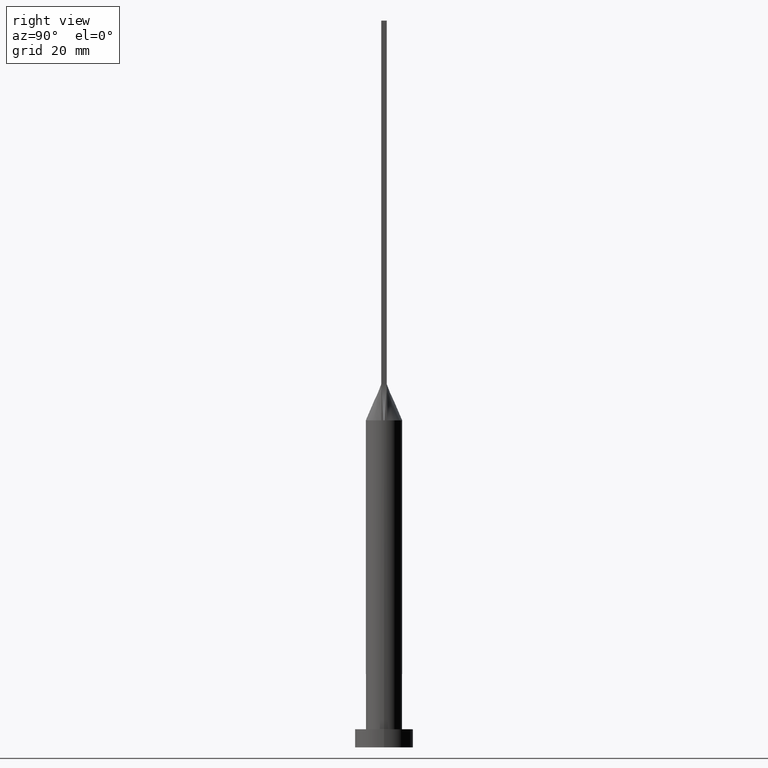
[diagram: clean part render]
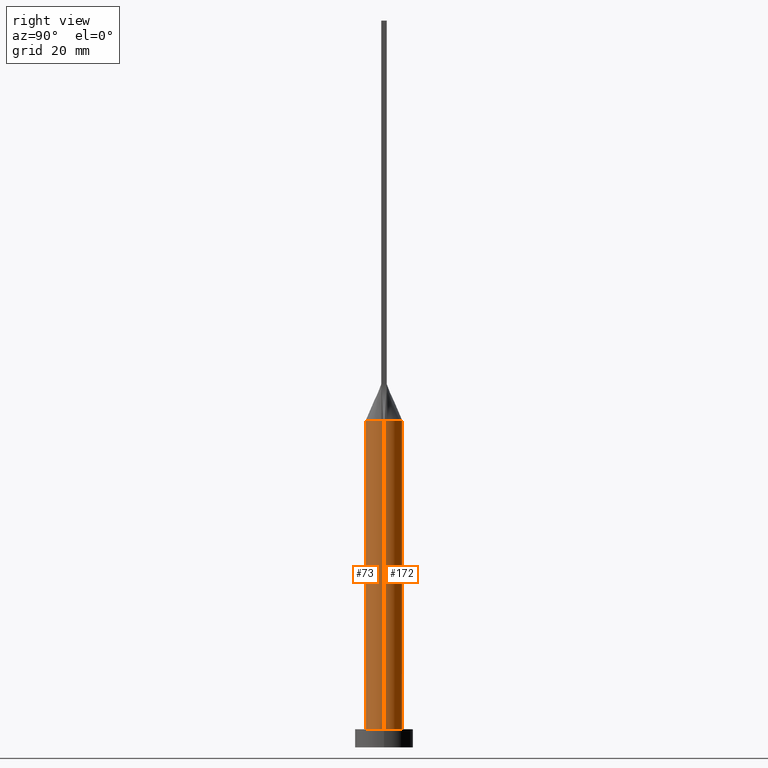
[diagram: same view with one multi-face feature highlighted, each face labeled with its STEP entity id]
A machine part, right view. The highlighted faces form ONE feature: a constant-radius fillet chain: 2 tangent blend faces with common blend radius 5 mm. The faces share edges in the B-rep.
Their STEP definitions:
[1] entity #172 (Cylinder):
#7 = EDGE_CURVE ( 'NONE', #398, #416, #492, .T. ) ;
#21 = CARTESIAN_POINT ( 'NONE',  ( 4.938814826645345768, 0.7798128673650538412, 90.00000000000001421 ) ) ;
#34 = CARTESIAN_POINT ( 'NONE',  ( 0.000000000000000000, 0.000000000000000000, 5.000000000000000000 ) ) ;
#39 = ORIENTED_EDGE ( 'NONE', *, *, #323, .F. ) ;
#40 = CARTESIAN_POINT ( 'NONE',  ( 4.938814826645345768, 0.7798128673650538412, 90.00000000000001421 ) ) ;
#42 = CARTESIAN_POINT ( 'NONE',  ( -4.332026455536841070, 2.547220758687717801, 90.00000000000001421 ) ) ;
#43 = CIRCLE ( 'NONE', #77, 5.000000000000000000 ) ;
#52 = CARTESIAN_POINT ( 'NONE',  ( -5.000000000000000000, 0.000000000000000000, 90.00000000000001421 ) ) ;
#64 = ORIENTED_EDGE ( 'NONE', *, *, #130, .F. ) ;
#70 = CARTESIAN_POINT ( 'NONE',  ( 4.999812818728077701, 1.241126956226958231E-15, 90.00000000000001421 ) ) ;
#77 = AXIS2_PLACEMENT_3D ( 'NONE', #260, #601, #85 ) ;
#78 = DIRECTION ( 'NONE',  ( 1.000000000000000000, 0.000000000000000000, 0.000000000000000000 ) ) ;
#80 = VERTEX_POINT ( 'NONE', #21 ) ;
#81 = DIRECTION ( 'NONE',  ( 0.000000000000000000, 0.000000000000000000, 1.000000000000000000 ) ) ;
#85 = DIRECTION ( 'NONE',  ( 1.000000000000000000, 0.000000000000000000, 0.000000000000000000 ) ) ;
#91 = CARTESIAN_POINT ( 'NONE',  ( 0.7119876437238013001, 4.961551549233180758, 90.00000000000002842 ) ) ;
#95 = CARTESIAN_POINT ( 'NONE',  ( 0.3560391241594590972, 5.000000000000001776, 90.00000000000002842 ) ) ;
#102 = CARTESIAN_POINT ( 'NONE',  ( -4.753727492665067444, 1.629988260829202007, 90.00000000000005684 ) ) ;
#115 = DIRECTION ( 'NONE',  ( -0.000000000000000000, -0.000000000000000000, -1.000000000000000000 ) ) ;
#123 = FACE_OUTER_BOUND ( 'NONE', #265, .T. ) ;
#130 = EDGE_CURVE ( 'NONE', #221, #362, #519, .T. ) ;
#137 = CARTESIAN_POINT ( 'NONE',  ( -0.3560391241594593192, 5.000000000000000000, 90.00000000000004263 ) ) ;
#146 = CARTESIAN_POINT ( 'NONE',  ( -2.643217737595827455, 4.256483892511438327, 90.00000000000000000 ) ) ;
#161 = ORIENTED_EDGE ( 'NONE', *, *, #7, .T. ) ;
#166 = AXIS2_PLACEMENT_3D ( 'NONE', #417, #494, #181 ) ;
#172 = ADVANCED_FACE ( 'NONE', ( #123 ), #552, .T. ) ;
#181 = DIRECTION ( 'NONE',  ( 1.000000000000000000, 0.000000000000000000, 0.000000000000000000 ) ) ;
#188 = CARTESIAN_POINT ( 'NONE',  ( 4.753727492665065668, 1.629988260829201563, 90.00000000000002842 ) ) ;
#192 = CARTESIAN_POINT ( 'NONE',  ( 2.643217737595826566, 4.256483892511437439, 90.00000000000001421 ) ) ;
#194 = CARTESIAN_POINT ( 'NONE',  ( -4.874625637456156291, 1.186344398896586716, 90.00000000000002842 ) ) ;
#202 = CARTESIAN_POINT ( 'NONE',  ( -4.999812818728077701, -1.193032336741890821E-15, 90.00000000000001421 ) ) ;
#211 = DIRECTION ( 'NONE',  ( -0.000000000000000000, -0.000000000000000000, -1.000000000000000000 ) ) ;
#214 = VECTOR ( 'NONE', #115, 1000.000000000000000 ) ;
#221 = VERTEX_POINT ( 'NONE', #240 ) ;
#235 = CARTESIAN_POINT ( 'NONE',  ( -4.938831943662458812, 0.7798155886440081286, 90.00000000000001421 ) ) ;
#237 = CARTESIAN_POINT ( 'NONE',  ( 4.874625637456157179, 1.186344398896585606, 90.00000000000001421 ) ) ;
#240 = CARTESIAN_POINT ( 'NONE',  ( -4.938831943662458812, 0.7798155886440081286, 90.00000000000001421 ) ) ;
#260 = CARTESIAN_POINT ( 'NONE',  ( 0.000000000000000000, 0.000000000000000000, 90.00000000000001421 ) ) ;
#265 = EDGE_LOOP ( 'NONE', ( #607, #161, #412, #574, #64, #39 ) ) ;
#271 = CARTESIAN_POINT ( 'NONE',  ( -5.000000000000000000, 0.000000000000000000, 5.000000000000000000 ) ) ;
#276 = CARTESIAN_POINT ( 'NONE',  ( -3.168723755431092748, 3.881165404529570484, 90.00000000000000000 ) ) ;
#282 = CARTESIAN_POINT ( 'NONE',  ( -0.7119876437238006339, 4.961551549233178982, 90.00000000000001421 ) ) ;
#311 = DIRECTION ( 'NONE',  ( -0.000000000000000000, -0.000000000000000000, -1.000000000000000000 ) ) ;
#321 = CARTESIAN_POINT ( 'NONE',  ( 3.404830936252119411, 3.673931880027066388, 90.00000000000001421 ) ) ;
#323 = EDGE_CURVE ( 'NONE', #80, #221, #423, .T. ) ;
#324 = CARTESIAN_POINT ( 'NONE',  ( 4.332026455536839293, 2.547220758687718689, 90.00000000000005684 ) ) ;
#326 = CARTESIAN_POINT ( 'NONE',  ( 1.732223102076450250, 4.702695359254404295, 90.00000000000000000 ) ) ;
#330 = CARTESIAN_POINT ( 'NONE',  ( -1.400150253878312823, 4.812847332616943419, 90.00000000000000000 ) ) ;
#331 = VERTEX_POINT ( 'NONE', #271 ) ;
#340 = VECTOR ( 'NONE', #211, 1000.000000000000000 ) ;
#342 = EDGE_CURVE ( 'NONE', #362, #331, #481, .T. ) ;
#362 = VERTEX_POINT ( 'NONE', #202 ) ;
#363 = CARTESIAN_POINT ( 'NONE',  ( 5.000000000000000000, 6.123233995736766282E-16, 5.000000000000000000 ) ) ;
#371 = CARTESIAN_POINT ( 'NONE',  ( -3.404830936252120299, 3.673931880027067720, 90.00000000000000000 ) ) ;
#380 = CARTESIAN_POINT ( 'NONE',  ( -1.732223102076449806, 4.702695359254402518, 89.99999999999997158 ) ) ;
#398 = VERTEX_POINT ( 'NONE', #70 ) ;
#405 = CARTESIAN_POINT ( 'NONE',  ( 0.000000000000000000, 0.000000000000000000, 90.00000000000001421 ) ) ;
#412 = ORIENTED_EDGE ( 'NONE', *, *, #456, .T. ) ;
#416 = VERTEX_POINT ( 'NONE', #363 ) ;
#417 = CARTESIAN_POINT ( 'NONE',  ( 0.000000000000000000, 0.000000000000000000, 90.00000000000001421 ) ) ;
#423 = B_SPLINE_CURVE_WITH_KNOTS ( 'NONE', 3,
 ( #40, #237, #188, #324, #514, #321, #621, #192, #562, #326, #573, #91, #95, #137, #282, #330, #380, #567, #146, #276, #371, #474, #42, #102, #194, #235 ),
 .UNSPECIFIED., .F., .F.,
 ( 4, 2, 2, 2, 2, 2, 2, 2, 2, 2, 2, 2, 4 ),
 ( 0.000000000000000000, 0.1250000000000001388, 0.2500000000000002220, 0.3125000000000002776, 0.3750000000000002776, 0.4375000000000002776, 0.5000000000000002220, 0.5625000000000002220, 0.6250000000000001110, 0.6875000000000001110, 0.7500000000000001110, 0.8750000000000001110, 1.000000000000000000 ),
 .UNSPECIFIED. ) ;
#435 = CARTESIAN_POINT ( 'NONE',  ( 5.000000000000000000, 6.123233995736766282E-16, 90.00000000000001421 ) ) ;
#452 = AXIS2_PLACEMENT_3D ( 'NONE', #34, #81, #78 ) ;
#456 = EDGE_CURVE ( 'NONE', #416, #331, #581, .T. ) ;
#461 = EDGE_CURVE ( 'NONE', #398, #80, #43, .T. ) ;
#474 = CARTESIAN_POINT ( 'NONE',  ( -4.029217956433124748, 3.021257902548482033, 90.00000000000001421 ) ) ;
#481 = LINE ( 'NONE', #52, #214 ) ;
#492 = LINE ( 'NONE', #435, #340 ) ;
#494 = DIRECTION ( 'NONE',  ( 0.000000000000000000, 0.000000000000000000, 1.000000000000000000 ) ) ;
#514 = CARTESIAN_POINT ( 'NONE',  ( 4.029217956433126524, 3.021257902548482477, 90.00000000000001421 ) ) ;
#519 = CIRCLE ( 'NONE', #166, 5.000000000000000000 ) ;
#548 = DIRECTION ( 'NONE',  ( -1.000000000000000000, 0.000000000000000000, 0.000000000000000000 ) ) ;
#552 = CYLINDRICAL_SURFACE ( 'NONE', #572, 5.000000000000000000 ) ;
#562 = CARTESIAN_POINT ( 'NONE',  ( 2.353781608410062454, 4.424438117685770777, 90.00000000000001421 ) ) ;
#567 = CARTESIAN_POINT ( 'NONE',  ( -2.353781608410062010, 4.424438117685770777, 89.99999999999997158 ) ) ;
#572 = AXIS2_PLACEMENT_3D ( 'NONE', #405, #311, #548 ) ;
#573 = CARTESIAN_POINT ( 'NONE',  ( 1.400150253878312823, 4.812847332616943419, 90.00000000000001421 ) ) ;
#574 = ORIENTED_EDGE ( 'NONE', *, *, #342, .F. ) ;
#581 = CIRCLE ( 'NONE', #452, 5.000000000000000000 ) ;
#601 = DIRECTION ( 'NONE',  ( 0.000000000000000000, 0.000000000000000000, 1.000000000000000000 ) ) ;
#607 = ORIENTED_EDGE ( 'NONE', *, *, #461, .F. ) ;
#621 = CARTESIAN_POINT ( 'NONE',  ( 3.168723755431093192, 3.881165404529570040, 89.99999999999998579 ) ) ;
[2] entity #73 (Cylinder):
#7 = EDGE_CURVE ( 'NONE', #398, #416, #492, .T. ) ;
#27 = AXIS2_PLACEMENT_3D ( 'NONE', #244, #400, #119 ) ;
#33 = VERTEX_POINT ( 'NONE', #446 ) ;
#38 = CARTESIAN_POINT ( 'NONE',  ( -4.938821632323166178, -0.7798139456827060112, 90.00000000000001421 ) ) ;
#52 = CARTESIAN_POINT ( 'NONE',  ( -5.000000000000000000, 0.000000000000000000, 90.00000000000001421 ) ) ;
#65 = DIRECTION ( 'NONE',  ( 0.000000000000000000, 0.000000000000000000, 1.000000000000000000 ) ) ;
#70 = CARTESIAN_POINT ( 'NONE',  ( 4.999812818728077701, 1.241126956226958231E-15, 90.00000000000001421 ) ) ;
#73 = ADVANCED_FACE ( 'NONE', ( #253 ), #301, .T. ) ;
#75 = CIRCLE ( 'NONE', #193, 5.000000000000000000 ) ;
#88 = AXIS2_PLACEMENT_3D ( 'NONE', #94, #279, #274 ) ;
#94 = CARTESIAN_POINT ( 'NONE',  ( 0.000000000000000000, 0.000000000000000000, 90.00000000000001421 ) ) ;
#115 = DIRECTION ( 'NONE',  ( -0.000000000000000000, -0.000000000000000000, -1.000000000000000000 ) ) ;
#119 = DIRECTION ( 'NONE',  ( -1.000000000000000000, 0.000000000000000000, 0.000000000000000000 ) ) ;
#150 = DIRECTION ( 'NONE',  ( 1.000000000000000000, 2.664535259100375697E-15, 0.000000000000000000 ) ) ;
#191 = EDGE_CURVE ( 'NONE', #229, #33, #75, .T. ) ;
#193 = AXIS2_PLACEMENT_3D ( 'NONE', #496, #257, #501 ) ;
#202 = CARTESIAN_POINT ( 'NONE',  ( -4.999812818728077701, -1.193032336741890821E-15, 90.00000000000001421 ) ) ;
#211 = DIRECTION ( 'NONE',  ( -0.000000000000000000, -0.000000000000000000, -1.000000000000000000 ) ) ;
#214 = VECTOR ( 'NONE', #115, 1000.000000000000000 ) ;
#229 = VERTEX_POINT ( 'NONE', #38 ) ;
#234 = CARTESIAN_POINT ( 'NONE',  ( 0.000000000000000000, 0.000000000000000000, 5.000000000000000000 ) ) ;
#243 = CARTESIAN_POINT ( 'NONE',  ( 0.000000000000000000, 0.000000000000000000, 90.00000000000001421 ) ) ;
#244 = CARTESIAN_POINT ( 'NONE',  ( 0.000000000000000000, 0.000000000000000000, 90.00000000000001421 ) ) ;
#253 = FACE_OUTER_BOUND ( 'NONE', #320, .T. ) ;
#257 = DIRECTION ( 'NONE',  ( 0.000000000000000000, 0.000000000000000000, 1.000000000000000000 ) ) ;
#271 = CARTESIAN_POINT ( 'NONE',  ( -5.000000000000000000, 0.000000000000000000, 5.000000000000000000 ) ) ;
#274 = DIRECTION ( 'NONE',  ( 1.000000000000000000, 0.000000000000000000, 0.000000000000000000 ) ) ;
#279 = DIRECTION ( 'NONE',  ( 0.000000000000000000, 0.000000000000000000, 1.000000000000000000 ) ) ;
#280 = EDGE_CURVE ( 'NONE', #362, #229, #347, .T. ) ;
#287 = EDGE_CURVE ( 'NONE', #331, #416, #432, .T. ) ;
#301 = CYLINDRICAL_SURFACE ( 'NONE', #27, 5.000000000000000000 ) ;
#318 = AXIS2_PLACEMENT_3D ( 'NONE', #234, #378, #612 ) ;
#320 = EDGE_LOOP ( 'NONE', ( #510, #431, #406, #354, #596, #401 ) ) ;
#331 = VERTEX_POINT ( 'NONE', #271 ) ;
#340 = VECTOR ( 'NONE', #211, 1000.000000000000000 ) ;
#342 = EDGE_CURVE ( 'NONE', #362, #331, #481, .T. ) ;
#347 = CIRCLE ( 'NONE', #88, 5.000000000000000000 ) ;
#354 = ORIENTED_EDGE ( 'NONE', *, *, #280, .F. ) ;
#362 = VERTEX_POINT ( 'NONE', #202 ) ;
#363 = CARTESIAN_POINT ( 'NONE',  ( 5.000000000000000000, 6.123233995736766282E-16, 5.000000000000000000 ) ) ;
#372 = CIRCLE ( 'NONE', #381, 5.000000000000000000 ) ;
#377 = EDGE_CURVE ( 'NONE', #33, #398, #372, .T. ) ;
#378 = DIRECTION ( 'NONE',  ( 0.000000000000000000, 0.000000000000000000, 1.000000000000000000 ) ) ;
#381 = AXIS2_PLACEMENT_3D ( 'NONE', #243, #65, #150 ) ;
#398 = VERTEX_POINT ( 'NONE', #70 ) ;
#400 = DIRECTION ( 'NONE',  ( -0.000000000000000000, -0.000000000000000000, -1.000000000000000000 ) ) ;
#401 = ORIENTED_EDGE ( 'NONE', *, *, #287, .T. ) ;
#406 = ORIENTED_EDGE ( 'NONE', *, *, #191, .F. ) ;
#416 = VERTEX_POINT ( 'NONE', #363 ) ;
#431 = ORIENTED_EDGE ( 'NONE', *, *, #377, .F. ) ;
#432 = CIRCLE ( 'NONE', #318, 5.000000000000000000 ) ;
#435 = CARTESIAN_POINT ( 'NONE',  ( 5.000000000000000000, 6.123233995736766282E-16, 90.00000000000001421 ) ) ;
#446 = CARTESIAN_POINT ( 'NONE',  ( 4.938833698301754893, -0.7798158709413661738, 90.00000000000001421 ) ) ;
#481 = LINE ( 'NONE', #52, #214 ) ;
#492 = LINE ( 'NONE', #435, #340 ) ;
#496 = CARTESIAN_POINT ( 'NONE',  ( 0.000000000000000000, 0.000000000000000000, 90.00000000000001421 ) ) ;
#501 = DIRECTION ( 'NONE',  ( 1.000000000000000000, 0.000000000000000000, 0.000000000000000000 ) ) ;
#510 = ORIENTED_EDGE ( 'NONE', *, *, #7, .F. ) ;
#596 = ORIENTED_EDGE ( 'NONE', *, *, #342, .T. ) ;
#612 = DIRECTION ( 'NONE',  ( 1.000000000000000000, 0.000000000000000000, 0.000000000000000000 ) ) ;